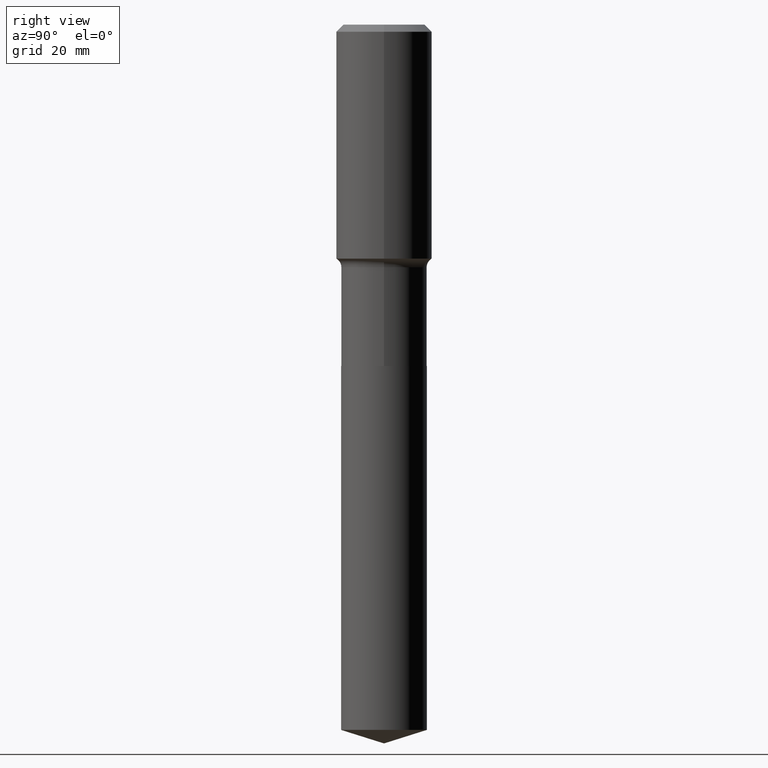
[diagram: clean part render]
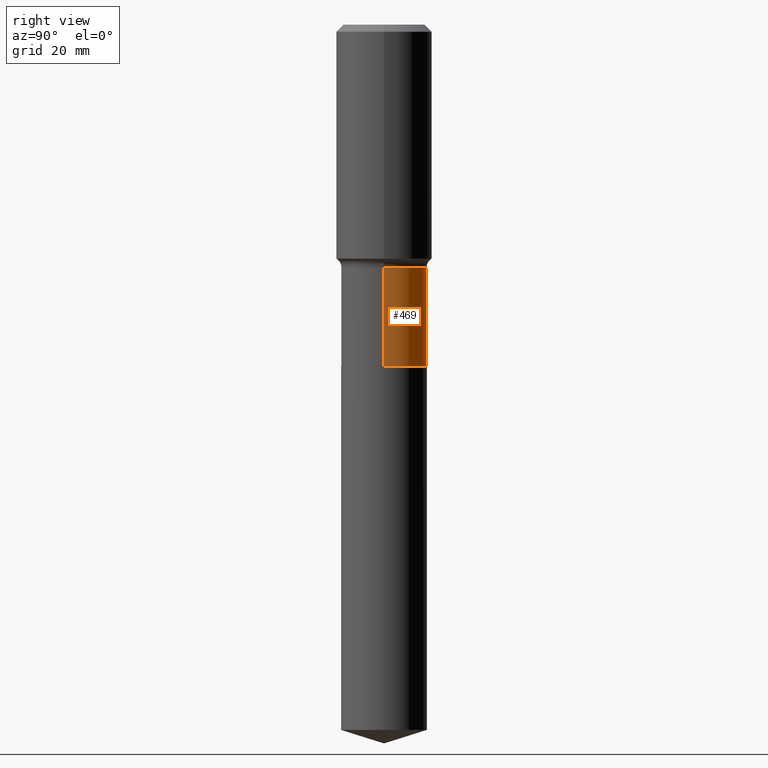
[diagram: same view with one face highlighted and labeled with its STEP entity id]
A machine part, right view. The second image highlights one B-rep face of the part: STEP entity #469.
In plain terms, the highlighted cylindrical surface (partial cylindrical patch) has radius 8.5331 mm, axis along (-0, 0, 1).
Its self-contained STEP definition (entity closure, byte-faithful):
#2 = AXIS2_PLACEMENT_3D ( 'NONE', #97, #27, #213 ) ;
#17 = VECTOR ( 'NONE', #106, 39.37007874015748143 ) ;
#24 = CARTESIAN_POINT ( 'NONE',  ( -0.3359499999999999154, -5.592013982872184177E-15, -1.899200000000000221 ) ) ;
#27 = DIRECTION ( 'NONE',  ( -2.445468806185136597E-29, 3.491481338843145583E-15, 1.000000000000000000 ) ) ;
#61 = CYLINDRICAL_SURFACE ( 'NONE', #2, 0.3359500000000000264 ) ;
#74 = EDGE_CURVE ( 'NONE', #244, #253, #102, .T. ) ;
#97 = CARTESIAN_POINT ( 'NONE',  ( 0.000000000000000000, 0.000000000000000000, 0.000000000000000000 ) ) ;
#102 = CIRCLE ( 'NONE', #196, 0.3359500000000000264 ) ;
#106 = DIRECTION ( 'NONE',  ( -2.445468806185136877E-29, 3.491481338843145188E-15, 1.000000000000000000 ) ) ;
#111 = VERTEX_POINT ( 'NONE', #371 ) ;
#126 = LINE ( 'NONE', #161, #362 ) ;
#154 = DIRECTION ( 'NONE',  ( -2.445468806185136597E-29, 3.491481338843145583E-15, 1.000000000000000000 ) ) ;
#161 = CARTESIAN_POINT ( 'NONE',  ( 0.3359500000000000264, -2.345926311568701298E-15, 1.638151587828644602E-29 ) ) ;
#167 = ORIENTED_EDGE ( 'NONE', *, *, #74, .T. ) ;
#192 = DIRECTION ( 'NONE',  ( -2.445468806185136597E-29, 3.491481338843145583E-15, 1.000000000000000000 ) ) ;
#196 = AXIS2_PLACEMENT_3D ( 'NONE', #319, #192, #277 ) ;
#213 = DIRECTION ( 'NONE',  ( 1.000000000000000000, -6.982962677686265922E-15, 4.876176775795935232E-29 ) ) ;
#223 = DIRECTION ( 'NONE',  ( -2.445468806185136877E-29, 3.491481338843145188E-15, 1.000000000000000000 ) ) ;
#240 = ORIENTED_EDGE ( 'NONE', *, *, #411, .T. ) ;
#242 = CIRCLE ( 'NONE', #463, 0.3359499999999999154 ) ;
#244 = VERTEX_POINT ( 'NONE', #280 ) ;
#253 = VERTEX_POINT ( 'NONE', #466 ) ;
#272 = LINE ( 'NONE', #487, #17 ) ;
#277 = DIRECTION ( 'NONE',  ( 1.000000000000000000, -6.982962677686265133E-15, 0.000000000000000000 ) ) ;
#280 = CARTESIAN_POINT ( 'NONE',  ( 0.3359500000000000264, -1.167306956015427936E-14, -2.671399999999999775 ) ) ;
#282 = EDGE_CURVE ( 'NONE', #111, #401, #242, .T. ) ;
#286 = DIRECTION ( 'NONE',  ( 1.000000000000000000, -6.982962677686263555E-15, 0.000000000000000000 ) ) ;
#288 = EDGE_CURVE ( 'NONE', #244, #111, #126, .T. ) ;
#319 = CARTESIAN_POINT ( 'NONE',  ( 6.532825368842972898E-29, -9.327143248585578454E-15, -2.671399999999999775 ) ) ;
#332 = EDGE_LOOP ( 'NONE', ( #167, #240, #408, #344 ) ) ;
#344 = ORIENTED_EDGE ( 'NONE', *, *, #288, .F. ) ;
#358 = CARTESIAN_POINT ( 'NONE',  ( 4.644434356706812509E-29, -6.631021358730902635E-15, -1.899200000000000221 ) ) ;
#362 = VECTOR ( 'NONE', #223, 39.37007874015748143 ) ;
#371 = CARTESIAN_POINT ( 'NONE',  ( 0.3359499999999999154, -8.976947670299603539E-15, -1.899200000000000221 ) ) ;
#374 = FACE_OUTER_BOUND ( 'NONE', #332, .T. ) ;
#401 = VERTEX_POINT ( 'NONE', #24 ) ;
#408 = ORIENTED_EDGE ( 'NONE', *, *, #282, .F. ) ;
#411 = EDGE_CURVE ( 'NONE', #253, #401, #272, .T. ) ;
#463 = AXIS2_PLACEMENT_3D ( 'NONE', #358, #154, #286 ) ;
#466 = CARTESIAN_POINT ( 'NONE',  ( -0.3359500000000000264, -5.592013982872184177E-15, -2.671399999999999775 ) ) ;
#469 = ADVANCED_FACE ( 'NONE', ( #374 ), #61, .T. ) ;
#487 = CARTESIAN_POINT ( 'NONE',  ( -0.3359500000000000264, 2.387068320786056762E-15, -1.652516243571135534E-29 ) ) ;